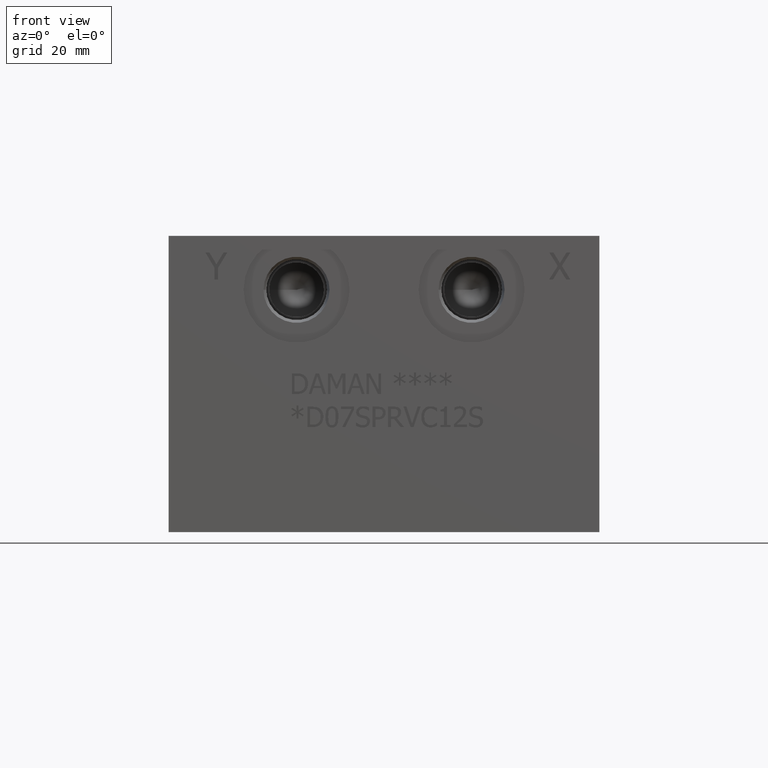
[diagram: clean part render]
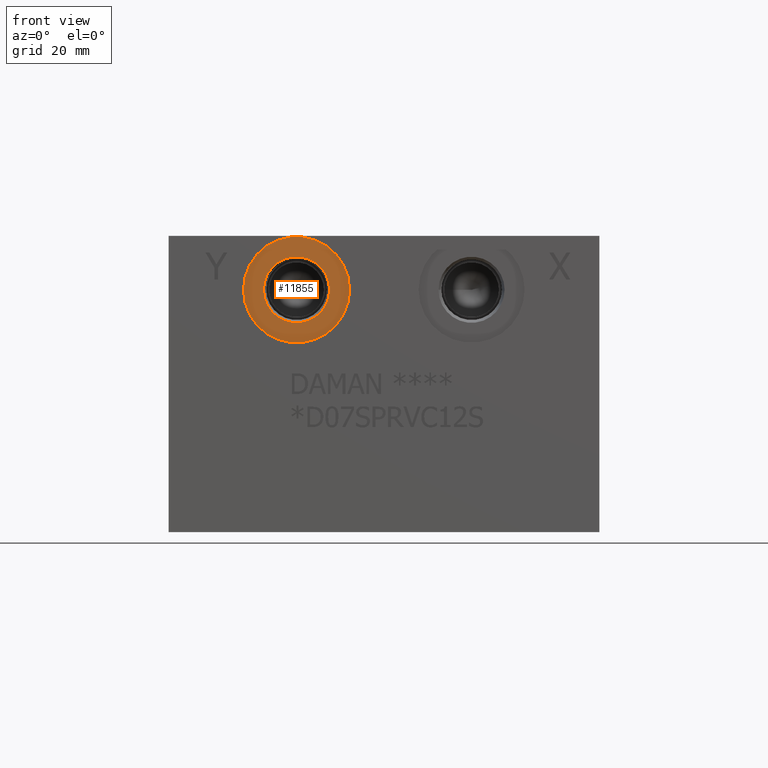
[diagram: same view with one face highlighted and labeled with its STEP entity id]
A machine part, front view. The second image highlights one B-rep face of the part: STEP entity #11855.
In plain terms, the highlighted planar face has unit normal (0, 1, 0).
Its self-contained STEP definition (entity closure, byte-faithful):
#251=CIRCLE('',#12452,12.5095);
#252=CIRCLE('',#12453,12.5095);
#253=CIRCLE('',#12455,7.7978);
#254=CIRCLE('',#12456,7.7978);
#452=FACE_BOUND('',#2096,.T.);
#1432=FACE_OUTER_BOUND('',#2095,.T.);
#2095=EDGE_LOOP('',(#10084,#10085));
#2096=EDGE_LOOP('',(#10086,#10087));
#5394=VERTEX_POINT('',#20174);
#5395=VERTEX_POINT('',#20176);
#5396=VERTEX_POINT('',#20180);
#5397=VERTEX_POINT('',#20181);
#7003=EDGE_CURVE('',#5394,#5395,#251,.T.);
#7004=EDGE_CURVE('',#5395,#5394,#252,.T.);
#7005=EDGE_CURVE('',#5396,#5397,#253,.T.);
#7006=EDGE_CURVE('',#5397,#5396,#254,.T.);
#10084=ORIENTED_EDGE('',*,*,#7004,.F.);
#10085=ORIENTED_EDGE('',*,*,#7003,.F.);
#10086=ORIENTED_EDGE('',*,*,#7005,.T.);
#10087=ORIENTED_EDGE('',*,*,#7006,.T.);
#10872=PLANE('',#12454);
#11855=ADVANCED_FACE('',(#1432,#452),#10872,.F.);
#12452=AXIS2_PLACEMENT_3D('',#20177,#14714,#14715);
#12453=AXIS2_PLACEMENT_3D('',#20178,#14716,#14717);
#12454=AXIS2_PLACEMENT_3D('',#20179,#14718,#14719);
#12455=AXIS2_PLACEMENT_3D('',#20182,#14720,#14721);
#12456=AXIS2_PLACEMENT_3D('',#20183,#14722,#14723);
#14714=DIRECTION('center_axis',(0.,1.,0.));
#14715=DIRECTION('ref_axis',(1.,0.,0.));
#14716=DIRECTION('center_axis',(0.,1.,0.));
#14717=DIRECTION('ref_axis',(1.,0.,0.));
#14718=DIRECTION('center_axis',(0.,1.,0.));
#14719=DIRECTION('ref_axis',(0.,0.,1.));
#14720=DIRECTION('center_axis',(0.,1.,0.));
#14721=DIRECTION('ref_axis',(1.,0.,0.));
#14722=DIRECTION('center_axis',(0.,1.,0.));
#14723=DIRECTION('ref_axis',(1.,0.,0.));
#20174=CARTESIAN_POINT('',(17.6657,0.7874,57.15));
#20176=CARTESIAN_POINT('',(42.6847,0.7874,57.15));
#20177=CARTESIAN_POINT('Origin',(30.1752,0.7874,57.15));
#20178=CARTESIAN_POINT('Origin',(30.1752,0.7874,57.15));
#20179=CARTESIAN_POINT('Origin',(37.973,0.7874,57.15));
#20180=CARTESIAN_POINT('',(37.973,0.7874,57.15));
#20181=CARTESIAN_POINT('',(22.3774,0.7874,57.15));
#20182=CARTESIAN_POINT('Origin',(30.1752,0.7874,57.15));
#20183=CARTESIAN_POINT('Origin',(30.1752,0.7874,57.15));